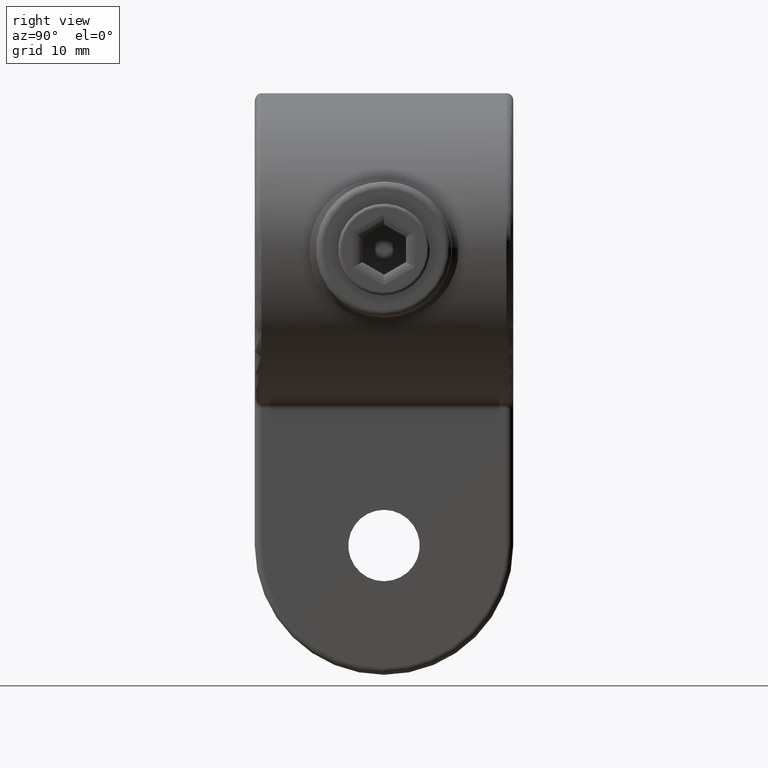
[diagram: clean part render]
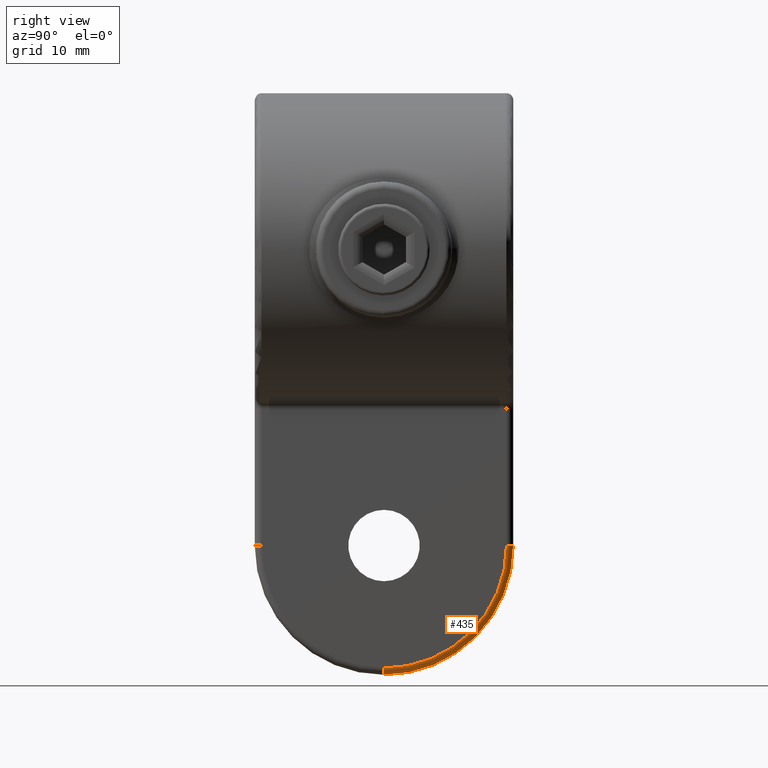
[diagram: same view with one face highlighted and labeled with its STEP entity id]
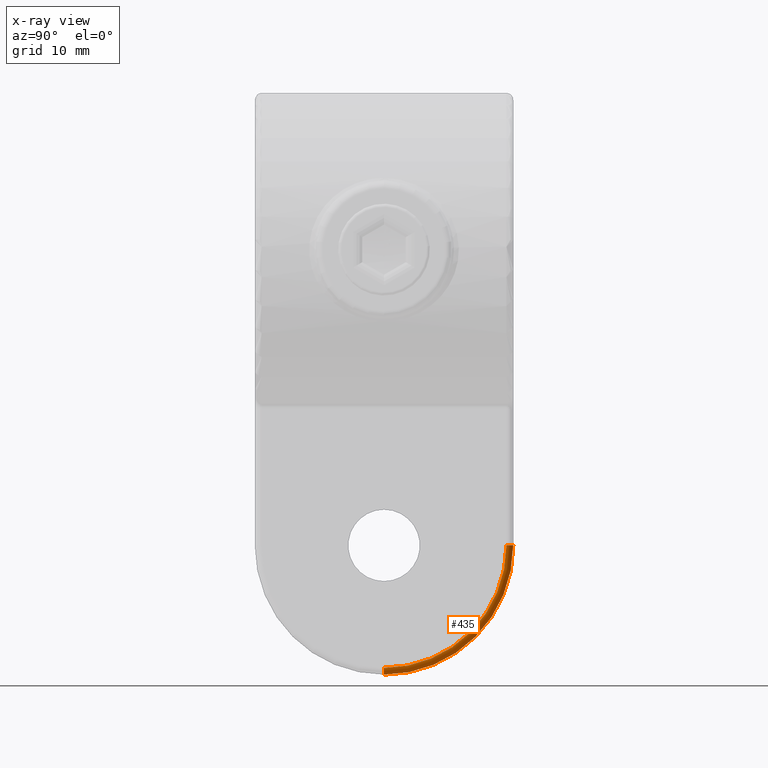
[diagram: x-ray of the same camera — body ghosted, the highlighted face saturated]
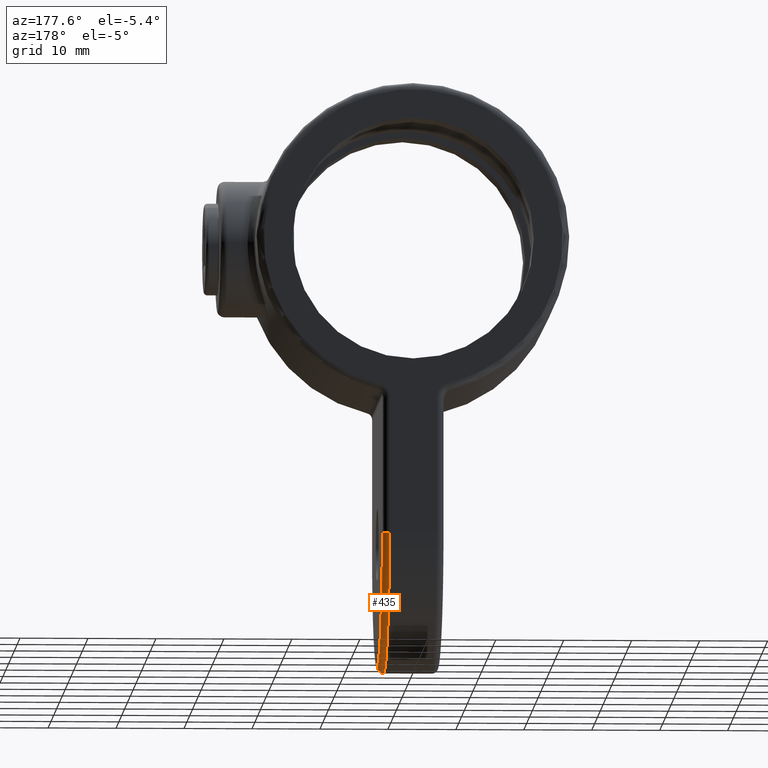
[diagram: same view with one face highlighted and labeled with its STEP entity id]
A machine part, right view. The second image highlights one B-rep face of the part: STEP entity #435.
The next image is the same camera in x-ray: the body ghosted, the highlighted face saturated — about 0% of this face is hidden behind the body in this view.
A second angle (auxiliary view) of the same face is appended — the face is thin or edge-on in the first view.
In plain terms, the highlighted toroidal blend (fillet) surface has major radius 18 mm and minor (blend) radius 1 mm.
Its self-contained STEP definition (entity closure, byte-faithful):
#29 = CARTESIAN_POINT ( 'NONE',  ( 4.500000000000000000, 0.000000000000000000, -61.50000000000000000 ) ) ;
#230 = VERTEX_POINT ( 'NONE', #29 ) ;
#435 = ADVANCED_FACE ( 'NONE', ( #10278 ), #7445, .T. ) ;
#1319 = CARTESIAN_POINT ( 'NONE',  ( 3.500000000000000444, 19.00000000000000000, -43.50000000000000000 ) ) ;
#1920 = DIRECTION ( 'NONE',  ( 0.000000000000000000, 0.000000000000000000, 1.000000000000000000 ) ) ;
#2174 = EDGE_LOOP ( 'NONE', ( #9765, #11500, #4337, #6370 ) ) ;
#2416 = CARTESIAN_POINT ( 'NONE',  ( 3.500000000000000444, 0.000000000000000000, -62.50000000000000000 ) ) ;
#2776 = DIRECTION ( 'NONE',  ( 1.000000000000000000, 0.000000000000000000, 0.000000000000000000 ) ) ;
#2964 = DIRECTION ( 'NONE',  ( 0.000000000000000000, 0.000000000000000000, 1.000000000000000000 ) ) ;
#4163 = CARTESIAN_POINT ( 'NONE',  ( 4.500000000000000000, 18.00000000000000000, -43.50000000000000000 ) ) ;
#4172 = DIRECTION ( 'NONE',  ( -1.000000000000000000, 0.000000000000000000, 0.000000000000000000 ) ) ;
#4337 = ORIENTED_EDGE ( 'NONE', *, *, #12072, .F. ) ;
#4590 = AXIS2_PLACEMENT_3D ( 'NONE', #8928, #4172, #9953 ) ;
#4691 = CARTESIAN_POINT ( 'NONE',  ( 3.499999999999999556, 0.000000000000000000, -61.50000000000000000 ) ) ;
#4888 = CARTESIAN_POINT ( 'NONE',  ( 3.499999999999999556, 18.00000000000000000, -43.50000000000000000 ) ) ;
#5129 = AXIS2_PLACEMENT_3D ( 'NONE', #4888, #1920, #2776 ) ;
#5187 = CARTESIAN_POINT ( 'NONE',  ( 3.499999999999999556, 0.000000000000000000, -43.50000000000000000 ) ) ;
#5251 = DIRECTION ( 'NONE',  ( 1.000000000000000000, -0.000000000000000000, -0.000000000000000000 ) ) ;
#5597 = AXIS2_PLACEMENT_3D ( 'NONE', #4691, #8653, #2964 ) ;
#6138 = EDGE_CURVE ( 'NONE', #230, #11829, #9443, .T. ) ;
#6370 = ORIENTED_EDGE ( 'NONE', *, *, #6138, .F. ) ;
#6951 = VERTEX_POINT ( 'NONE', #2416 ) ;
#7445 = TOROIDAL_SURFACE ( 'NONE', #4590, 18.00000000000000000, 1.000000000000000000 ) ;
#7595 = CIRCLE ( 'NONE', #10854, 19.00000000000000000 ) ;
#7759 = VERTEX_POINT ( 'NONE', #1319 ) ;
#8653 = DIRECTION ( 'NONE',  ( -0.000000000000000000, 1.000000000000000000, 0.000000000000000000 ) ) ;
#8928 = CARTESIAN_POINT ( 'NONE',  ( 3.499999999999999556, 0.000000000000000000, -43.50000000000000000 ) ) ;
#9376 = CIRCLE ( 'NONE', #5597, 1.000000000000000888 ) ;
#9443 = CIRCLE ( 'NONE', #12449, 18.00000000000000000 ) ;
#9765 = ORIENTED_EDGE ( 'NONE', *, *, #10759, .T. ) ;
#9953 = DIRECTION ( 'NONE',  ( 0.000000000000000000, 0.000000000000000000, 1.000000000000000000 ) ) ;
#10122 = EDGE_CURVE ( 'NONE', #7759, #6951, #7595, .T. ) ;
#10278 = FACE_OUTER_BOUND ( 'NONE', #2174, .T. ) ;
#10759 = EDGE_CURVE ( 'NONE', #230, #6951, #9376, .T. ) ;
#10854 = AXIS2_PLACEMENT_3D ( 'NONE', #5187, #11968, #11878 ) ;
#11055 = CARTESIAN_POINT ( 'NONE',  ( 4.500000000000000000, 0.000000000000000000, -43.50000000000000000 ) ) ;
#11500 = ORIENTED_EDGE ( 'NONE', *, *, #10122, .F. ) ;
#11829 = VERTEX_POINT ( 'NONE', #4163 ) ;
#11878 = DIRECTION ( 'NONE',  ( 0.000000000000000000, 0.000000000000000000, 1.000000000000000000 ) ) ;
#11968 = DIRECTION ( 'NONE',  ( -1.000000000000000000, 0.000000000000000000, 0.000000000000000000 ) ) ;
#12072 = EDGE_CURVE ( 'NONE', #11829, #7759, #12342, .T. ) ;
#12081 = DIRECTION ( 'NONE',  ( 0.000000000000000000, 0.000000000000000000, 1.000000000000000000 ) ) ;
#12342 = CIRCLE ( 'NONE', #5129, 1.000000000000000000 ) ;
#12449 = AXIS2_PLACEMENT_3D ( 'NONE', #11055, #5251, #12081 ) ;